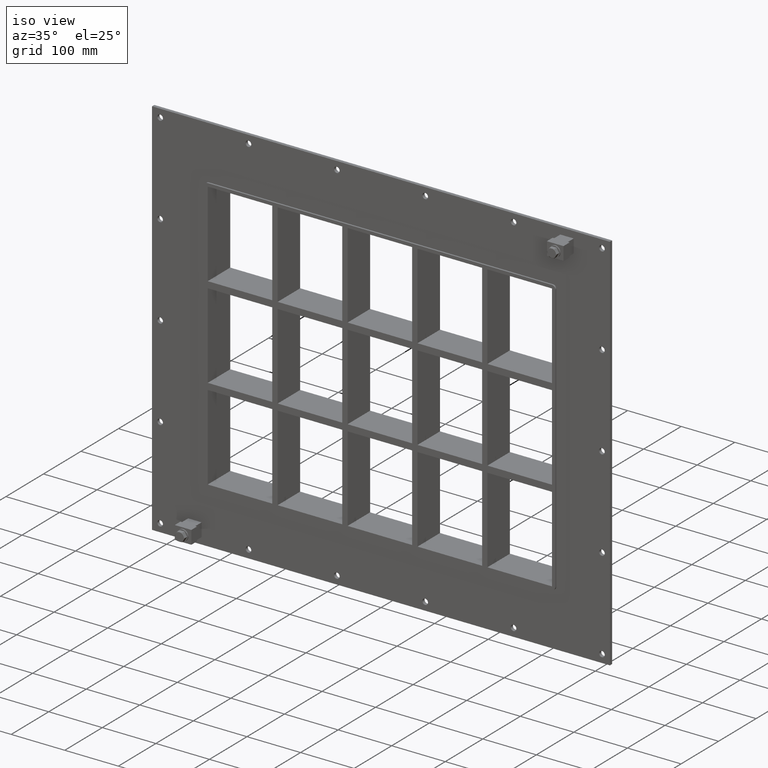
[diagram: clean part render]
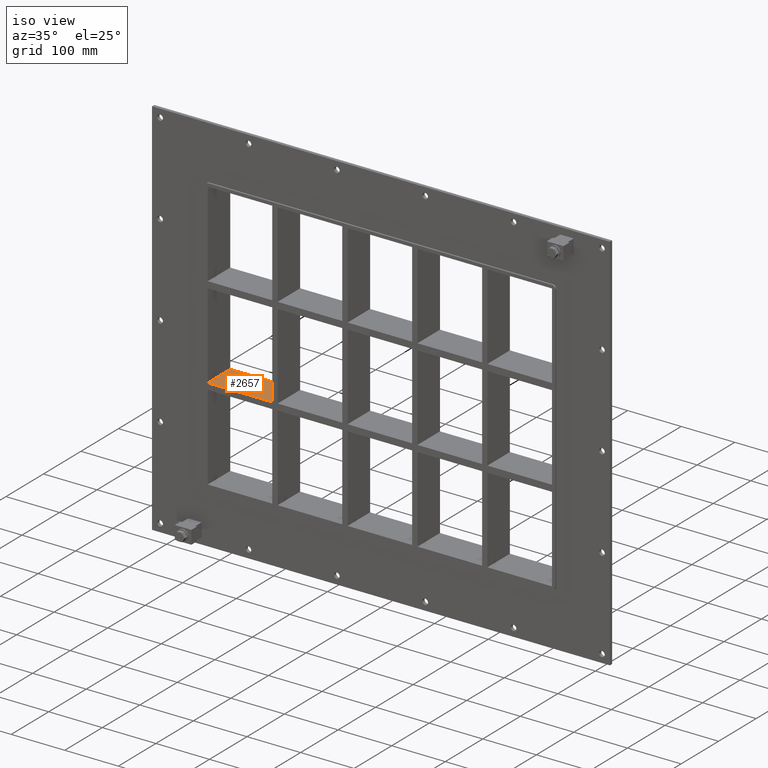
[diagram: same view with one face highlighted and labeled with its STEP entity id]
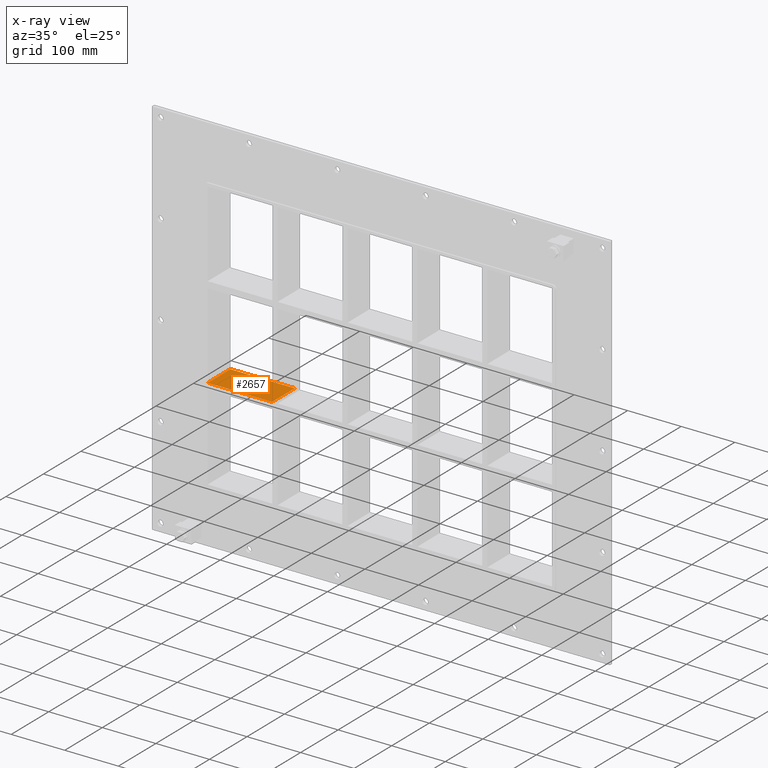
[diagram: x-ray of the same camera — body ghosted, the highlighted face saturated]
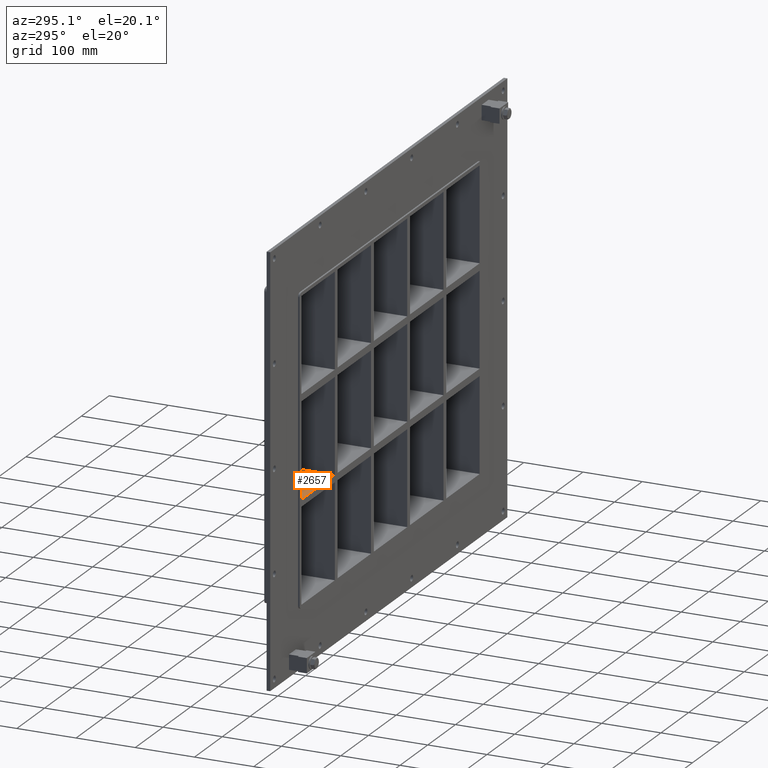
[diagram: same view with one face highlighted and labeled with its STEP entity id]
A machine part, iso view. The second image highlights one B-rep face of the part: STEP entity #2657.
The next image is the same camera in x-ray: the body ghosted, the highlighted face saturated — about 0% of this face is hidden behind the body in this view.
A second angle (auxiliary view) of the same face is appended — the face is thin or edge-on in the first view.
In plain terms, the highlighted planar face has unit normal (0, 0, 1).
Its self-contained STEP definition (entity closure, byte-faithful):
#1288=CARTESIAN_POINT('',(-200.74999999999898,57.0,-79.749999999999091));
#1289=VERTEX_POINT('',#1288);
#1296=CARTESIAN_POINT('',(-200.74999999999898,-3.0,-79.749999999999091));
#1297=VERTEX_POINT('',#1296);
#1298=CARTESIAN_POINT('',(-200.74999999999901,57.0,-79.749999999999091));
#1299=DIRECTION('',(0.0,-1.0,0.0));
#1300=VECTOR('',#1299,60.0);
#1301=LINE('',#1298,#1300);
#1302=EDGE_CURVE('',#1289,#1297,#1301,.T.);
#1419=CARTESIAN_POINT('',(-321.24999999999727,57.0,-79.749999999999091));
#1420=VERTEX_POINT('',#1419);
#1427=CARTESIAN_POINT('',(-321.24999999999727,57.0,-79.749999999999091));
#1428=DIRECTION('',(1.0,0.0,0.0));
#1429=VECTOR('',#1428,120.49999999999835);
#1430=LINE('',#1427,#1429);
#1431=EDGE_CURVE('',#1420,#1289,#1430,.T.);
#2340=CARTESIAN_POINT('',(-321.24999999999727,-3.0,-79.749999999999091));
#2341=VERTEX_POINT('',#2340);
#2342=CARTESIAN_POINT('',(-321.24999999999727,-3.0,-79.749999999999091));
#2343=DIRECTION('',(1.0,0.0,0.0));
#2344=VECTOR('',#2343,120.49999999999835);
#2345=LINE('',#2342,#2344);
#2346=EDGE_CURVE('',#2341,#1297,#2345,.T.);
#2641=CARTESIAN_POINT('',(-321.24999999999727,-3.0,-79.749999999999091));
#2642=DIRECTION('',(0.0,0.0,1.0));
#2643=DIRECTION('',(1.0,0.0,0.0));
#2644=AXIS2_PLACEMENT_3D('',#2641,#2642,#2643);
#2645=PLANE('',#2644);
#2646=ORIENTED_EDGE('',*,*,#1302,.F.);
#2647=ORIENTED_EDGE('',*,*,#1431,.F.);
#2648=CARTESIAN_POINT('',(-321.25,-3.0,-79.749999999999091));
#2649=DIRECTION('',(0.0,1.0,0.0));
#2650=VECTOR('',#2649,60.000000000000007);
#2651=LINE('',#2648,#2650);
#2652=EDGE_CURVE('',#2341,#1420,#2651,.T.);
#2653=ORIENTED_EDGE('',*,*,#2652,.F.);
#2654=ORIENTED_EDGE('',*,*,#2346,.T.);
#2655=EDGE_LOOP('',(#2646,#2647,#2653,#2654));
#2656=FACE_OUTER_BOUND('',#2655,.T.);
#2657=ADVANCED_FACE('',(#2656),#2645,.T.);